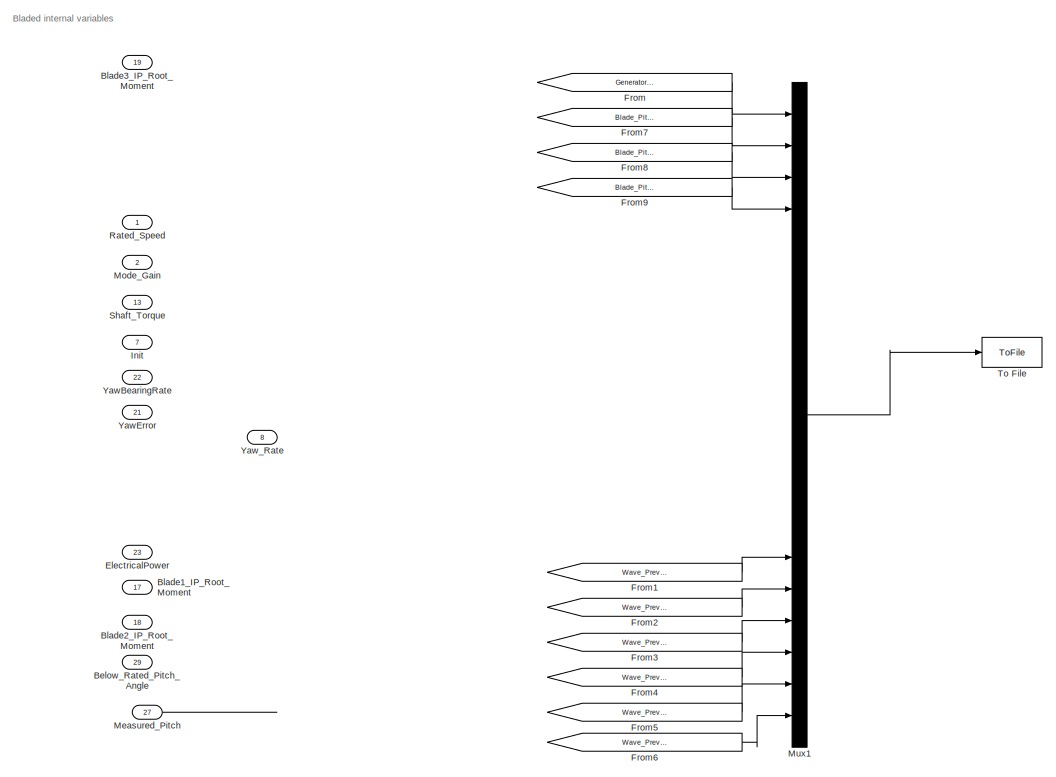
[diagram: root canvas - part 1/3, middle right region]
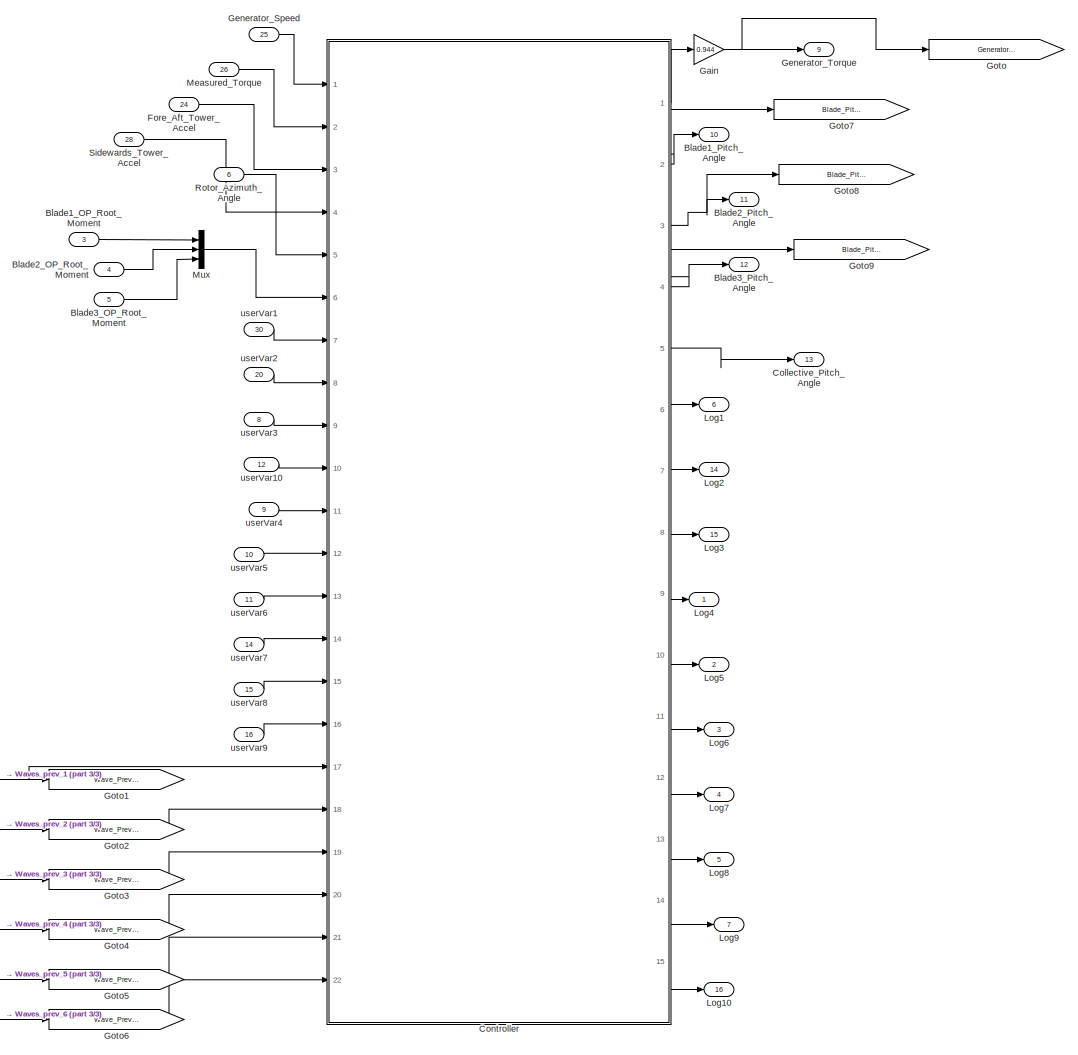
[diagram: root canvas - part 2/3, left side, full height]
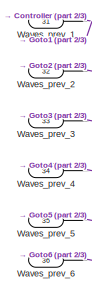
[diagram: root canvas - part 3/3, bottom left region]
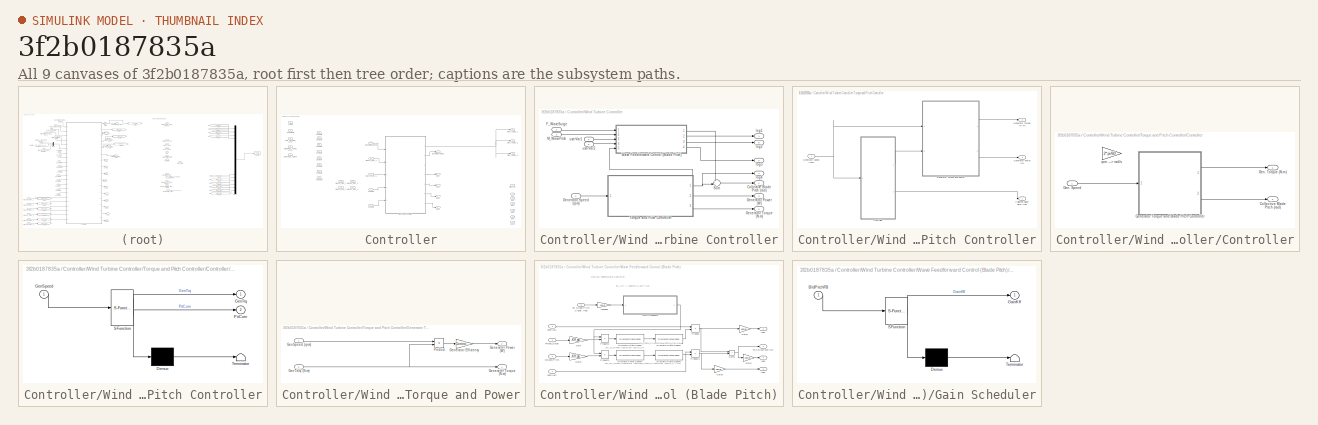
[diagram: thumbnail index - all 9 canvases of the model, root first then tree order]
MODEL slx_3f2b0187835a
KIND model
CONFIG AbsTol = auto
CONFIG EnableMultiTasking = off
CONFIG FixedStep = Control.TimeStep
CONFIG MaxStep = auto
CONFIG MinStep = auto
CONFIG RelTol = 1e-3
CONFIG SampleTimeConstraint = Unconstrained
CONFIG SolverName = FixedStepDiscrete
CONFIG StartTime = 0.0
CONFIG StopTime = inf
BLOCK [Inport] Below_Rated_Pitch_Angle
  Port = 29
  PortDimensions = 1
  SignalType = real
BLOCK [Inport] Blade1_IP_Root_Moment
  Port = 17
  PortDimensions = 1
  SignalType = real
  VarSizeSig = No
BLOCK [Inport] Blade1_OP_Root_Moment
  Port = 3
  PortDimensions = 1
  SignalType = real
  VarSizeSig = No
BLOCK [Outport] Blade1_Pitch_Angle
  Port = 10
  PortDimensions = 1
  SignalType = real
  VarSizeSig = No
  VectorParamsAs1DForOutWhenUnconnected = off
BLOCK [Inport] Blade2_IP_Root_Moment
  Port = 18
  PortDimensions = 1
  SignalType = real
  VarSizeSig = No
BLOCK [Inport] Blade2_OP_Root_Moment
  Port = 4
  PortDimensions = 1
  SignalType = real
  VarSizeSig = No
BLOCK [Outport] Blade2_Pitch_Angle
  Port = 11
  PortDimensions = 1
  SignalType = real
  VarSizeSig = No
  VectorParamsAs1DForOutWhenUnconnected = off
BLOCK [Inport] Blade3_IP_Root_Moment
  Port = 19
  PortDimensions = 1
  SignalType = real
  VarSizeSig = No
BLOCK [Inport] Blade3_OP_Root_Moment
  Port = 5
  PortDimensions = 1
  SignalType = real
  VarSizeSig = No
BLOCK [Outport] Blade3_Pitch_Angle
  Port = 12
  PortDimensions = 1
  SignalType = real
  VarSizeSig = No
  VectorParamsAs1DForOutWhenUnconnected = off
BLOCK [Outport] Collective_Pitch_Angle
  Port = 13
  PortDimensions = 1
  SignalType = real
  VarSizeSig = No
  VectorParamsAs1DForOutWhenUnconnected = off
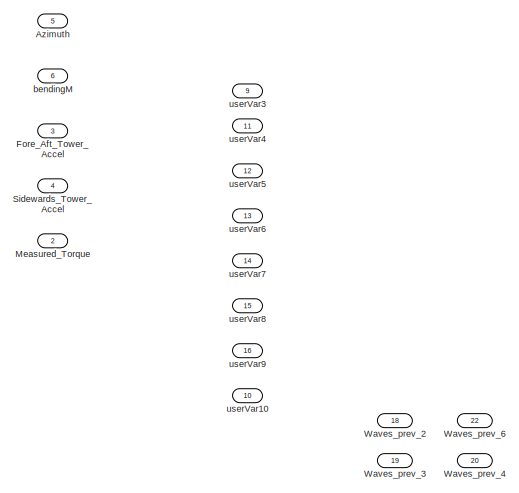
[diagram: Controller - part 1/2, middle left region]
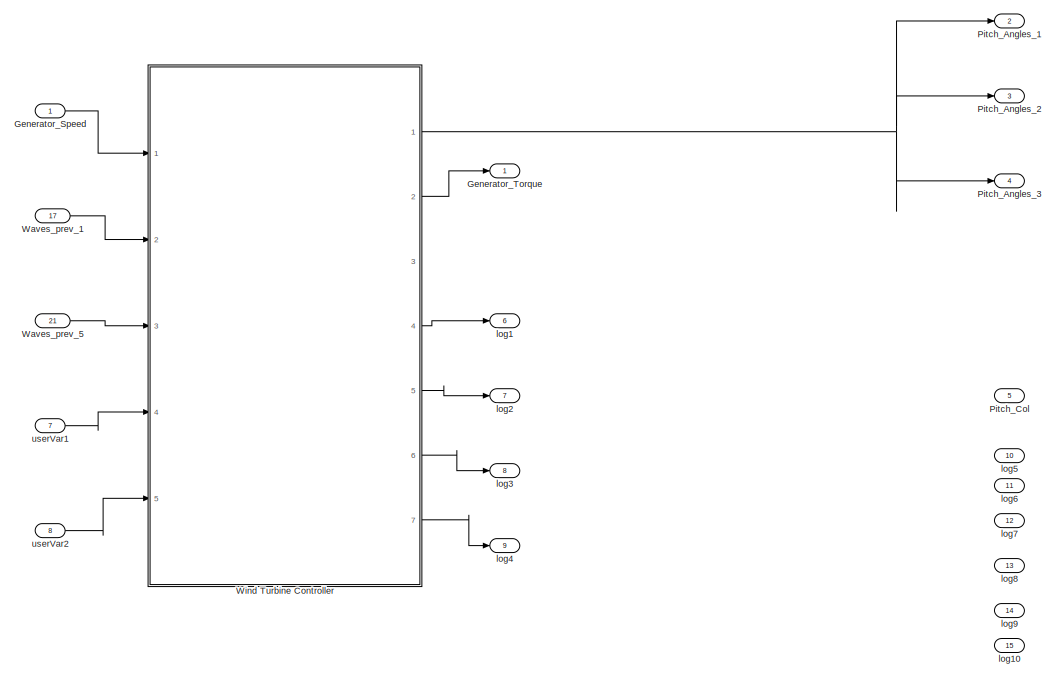
[diagram: Controller - part 2/2, right side, full height]
BLOCK [SubSystem] Controller
  Ports = [22, 15]
  RequestExecContextInheritance = off
BLOCK [Inport] Controller/Azimuth
  Port = 5
  PortDimensions = 1
  SignalType = real
BLOCK [Inport] Controller/Fore_Aft_Tower_Accel
  Port = 3
BLOCK [Inport] Controller/Generator_Speed
BLOCK [Outport] Controller/Generator_Torque
  VectorParamsAs1DForOutWhenUnconnected = off
BLOCK [Inport] Controller/Measured_Torque
  Port = 2
BLOCK [Outport] Controller/Pitch_Angles_1
  Port = 2
  PortDimensions = 1
  SignalType = real
  VectorParamsAs1DForOutWhenUnconnected = off
BLOCK [Outport] Controller/Pitch_Angles_2
  Port = 3
  PortDimensions = 1
  SignalType = real
  VectorParamsAs1DForOutWhenUnconnected = off
BLOCK [Outport] Controller/Pitch_Angles_3
  Port = 4
  PortDimensions = 1
  SignalType = real
  VectorParamsAs1DForOutWhenUnconnected = off
BLOCK [Outport] Controller/Pitch_Col
  Port = 5
  PortDimensions = 1
  SignalType = real
  VectorParamsAs1DForOutWhenUnconnected = off
BLOCK [Inport] Controller/Sidewards_Tower_Accel
  Port = 4
  PortDimensions = 1
  SignalType = real
BLOCK [Inport] Controller/Waves_prev_1
  Port = 17
  PortDimensions = 1
  SignalType = real
BLOCK [Inport] Controller/Waves_prev_2
  Port = 18
  PortDimensions = 1
  SignalType = real
BLOCK [Inport] Controller/Waves_prev_3
  Port = 19
  PortDimensions = 1
  SignalType = real
BLOCK [Inport] Controller/Waves_prev_4
  Port = 20
  PortDimensions = 1
  SignalType = real
BLOCK [Inport] Controller/Waves_prev_5
  Port = 21
  PortDimensions = 1
  SignalType = real
BLOCK [Inport] Controller/Waves_prev_6
  Port = 22
  PortDimensions = 1
  SignalType = real
BLOCK [SubSystem] Controller/Wind Turbine Controller
  Ports = [5, 7]
  RequestExecContextInheritance = off
BLOCK [Outport] Controller/Wind Turbine Controller/ Collective Blade Pitch (rad)
  NameLocation = right
BLOCK [Inport] Controller/Wind Turbine Controller/F_WaveSurge
  NameLocation = top
  Port = 2
BLOCK [Outport] Controller/Wind Turbine Controller/Generator Power (W)
  NameLocation = right
  Port = 3
BLOCK [Inport] Controller/Wind Turbine Controller/Generator Speed (rpm)
BLOCK [Outport] Controller/Wind Turbine Controller/Generator Torque (N.m)
  NameLocation = right
  Port = 2
BLOCK [Inport] Controller/Wind Turbine Controller/M_WavePitch
  Port = 3
BLOCK [Sum] Controller/Wind Turbine Controller/Sum
  Inputs = ++|
  Ports = [2, 1]
BLOCK [SubSystem] Controller/Wind Turbine Controller/Torque and Pitch Controller
  Ports = [1, 3]
  RequestExecContextInheritance = off
BLOCK [Outport] Controller/Wind Turbine Controller/Torque and Pitch Controller/ Collective Blade Pitch (rad)
BLOCK [SubSystem] Controller/Wind Turbine Controller/Torque and Pitch Controller/Controller
  Ports = [1, 2]
  RequestExecContextInheritance = off
BLOCK [Outport] Controller/Wind Turbine Controller/Torque and Pitch Controller/Controller/Collective Blade Pitch (rad)
  Port = 2
BLOCK [Inport] Controller/Wind Turbine Controller/Torque and Pitch Controller/Controller/Gen. Speed
BLOCK [Outport] Controller/Wind Turbine Controller/Torque and Pitch Controller/Controller/Gen. Torque (N.m)
BLOCK [SubSystem] Controller/Wind Turbine Controller/Torque and Pitch Controller/Controller/Generator Torque and Blade Pitch Controller
  ErrorFcn = Stateflow.Translate.translate
  PermitHierarchicalResolution = ExplicitOnly
  Ports = [1, 2]
  RequestExecContextInheritance = off
  SFBlockType = MATLAB Function
  TreatAsAtomicUnit = on
BLOCK [Demux] Controller/Wind Turbine Controller/Torque and Pitch Controller/Controller/Generator Torque and Blade Pitch Controller/ Demux 
  Outputs = 1
  Ports = [1, 1]
BLOCK [S-Function] Controller/Wind Turbine Controller/Torque and Pitch Controller/Controller/Generator Torque and Blade Pitch Controller/ SFunction 
  EnableBusSupport = on
  FunctionName = sf_sfun
  Parameters = Control
  PortCounts = [1 3]
  Ports = [1, 3]
  SFcnIsStateOwnerBlock = off
  SFunctionDeploymentMode = off
  Tag = Stateflow S-Function 16
BLOCK [Terminator] Controller/Wind Turbine Controller/Torque and Pitch Controller/Controller/Generator Torque and Blade Pitch Controller/ Terminator 
BLOCK [Inport] Controller/Wind Turbine Controller/Torque and Pitch Controller/Controller/Generator Torque and Blade Pitch Controller/GenSpeed
BLOCK [Outport] Controller/Wind Turbine Controller/Torque and Pitch Controller/Controller/Generator Torque and Blade Pitch Controller/GenTrq
BLOCK [Outport] Controller/Wind Turbine Controller/Torque and Pitch Controller/Controller/Generator Torque and Blade Pitch Controller/PitCom
  Port = 2
BLOCK [Gain] Controller/Wind Turbine Controller/Torque and Pitch Controller/Controller/rpm ---> rad//s
  Gain = 2*pi/60
BLOCK [Outport] Controller/Wind Turbine Controller/Torque and Pitch Controller/Generator Power (W)
  Port = 2
BLOCK [Inport] Controller/Wind Turbine Controller/Torque and Pitch Controller/Generator Speed (rpm)
BLOCK [Outport] Controller/Wind Turbine Controller/Torque and Pitch Controller/Generator Torque (N.m)
  Port = 3
BLOCK [SubSystem] Controller/Wind Turbine Controller/Torque and Pitch Controller/Generator Torque and Power
  Ports = [2, 2]
  RequestExecContextInheritance = off
BLOCK [Inport] Controller/Wind Turbine Controller/Torque and Pitch Controller/Generator Torque and Power/GenSpeed (rpm)
BLOCK [Inport] Controller/Wind Turbine Controller/Torque and Pitch Controller/Generator Torque and Power/GenTorq (N.m)
  Port = 2
BLOCK [Gain] Controller/Wind Turbine Controller/Torque and Pitch Controller/Generator Torque and Power/Generator Efficiency
  Gain = Control.Torque.GenEffec
BLOCK [Outport] Controller/Wind Turbine Controller/Torque and Pitch Controller/Generator Torque and Power/Generator Power (W)
  Port = 2
BLOCK [Outport] Controller/Wind Turbine Controller/Torque and Pitch Controller/Generator Torque and Power/Generator Torque (N.m)
BLOCK [Product] Controller/Wind Turbine Controller/Torque and Pitch Controller/Generator Torque and Power/Product
  Ports = [2, 1]
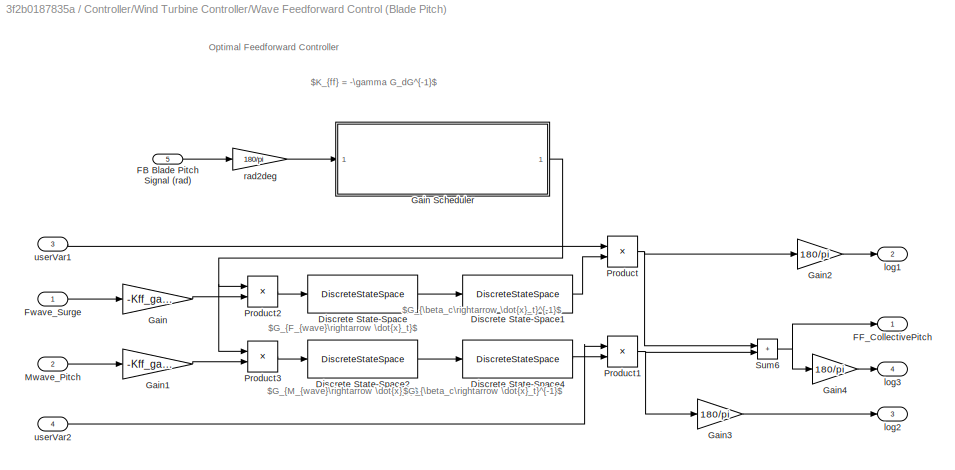
BLOCK [SubSystem] Controller/Wind Turbine Controller/Wave Feedforward Control (Blade Pitch)
  Ports = [5, 4]
  RequestExecContextInheritance = off
BLOCK [DiscreteStateSpace] Controller/Wind Turbine Controller/Wave Feedforward Control (Blade Pitch)/Discrete State-Space
  A = Gd_Fwave.A
  B = Gd_Fwave.B
  C = Gd_Fwave.C
  D = Gd_Fwave.D
  SampleTime = Control.TimeStep
BLOCK [DiscreteStateSpace] Controller/Wind Turbine Controller/Wave Feedforward Control (Blade Pitch)/Discrete State-Space1
  A = InvGp.A
  B = InvGp.B
  C = InvGp.C
  D = InvGp.D
  SampleTime = Control.TimeStep
BLOCK [DiscreteStateSpace] Controller/Wind Turbine Controller/Wave Feedforward Control (Blade Pitch)/Discrete State-Space2
  A = Gd_Mwave.A
  B = Gd_Mwave.B
  C = Gd_Mwave.C
  D = Gd_Mwave.D
  SampleTime = Control.TimeStep
BLOCK [DiscreteStateSpace] Controller/Wind Turbine Controller/Wave Feedforward Control (Blade Pitch)/Discrete State-Space4
  A = InvGp.A
  B = InvGp.B
  C = InvGp.C
  D = InvGp.D
  SampleTime = Control.TimeStep
BLOCK [Inport] Controller/Wind Turbine Controller/Wave Feedforward Control (Blade Pitch)/FB Blade Pitch Signal (rad)
  NameLocation = left
  Port = 5
BLOCK [Outport] Controller/Wind Turbine Controller/Wave Feedforward Control (Blade Pitch)/FF_CollectivePitch
BLOCK [Inport] Controller/Wind Turbine Controller/Wave Feedforward Control (Blade Pitch)/Fwave_Surge
BLOCK [Gain] Controller/Wind Turbine Controller/Wave Feedforward Control (Blade Pitch)/Gain
  Gain = -Kff_gain
BLOCK [SubSystem] Controller/Wind Turbine Controller/Wave Feedforward Control (Blade Pitch)/Gain Scheduler
  ErrorFcn = Stateflow.Translate.translate
  PermitHierarchicalResolution = ExplicitOnly
  Ports = [1, 1]
  RequestExecContextInheritance = off
  SFBlockType = MATLAB Function
  TreatAsAtomicUnit = on
BLOCK [Demux] Controller/Wind Turbine Controller/Wave Feedforward Control (Blade Pitch)/Gain Scheduler/ Demux 
  Outputs = 1
  Ports = [1, 1]
BLOCK [S-Function] Controller/Wind Turbine Controller/Wave Feedforward Control (Blade Pitch)/Gain Scheduler/ SFunction 
  EnableBusSupport = on
  FunctionName = sf_sfun
  PortCounts = [1 2]
  Ports = [1, 2]
  SFcnIsStateOwnerBlock = off
  SFunctionDeploymentMode = off
  Tag = Stateflow S-Function 2
BLOCK [Terminator] Controller/Wind Turbine Controller/Wave Feedforward Control (Blade Pitch)/Gain Scheduler/ Terminator 
BLOCK [Inport] Controller/Wind Turbine Controller/Wave Feedforward Control (Blade Pitch)/Gain Scheduler/BldPitchFB
BLOCK [Outport] Controller/Wind Turbine Controller/Wave Feedforward Control (Blade Pitch)/Gain Scheduler/GainKff
BLOCK [Gain] Controller/Wind Turbine Controller/Wave Feedforward Control (Blade Pitch)/Gain1
  Gain = -Kff_gain
BLOCK [Gain] Controller/Wind Turbine Controller/Wave Feedforward Control (Blade Pitch)/Gain2
  Gain = 180/pi
BLOCK [Gain] Controller/Wind Turbine Controller/Wave Feedforward Control (Blade Pitch)/Gain3
  Gain = 180/pi
BLOCK [Gain] Controller/Wind Turbine Controller/Wave Feedforward Control (Blade Pitch)/Gain4
  Gain = 180/pi
BLOCK [Inport] Controller/Wind Turbine Controller/Wave Feedforward Control (Blade Pitch)/Mwave_Pitch
  Port = 2
BLOCK [Product] Controller/Wind Turbine Controller/Wave Feedforward Control (Blade Pitch)/Product
  Ports = [2, 1]
BLOCK [Product] Controller/Wind Turbine Controller/Wave Feedforward Control (Blade Pitch)/Product1
  Ports = [2, 1]
BLOCK [Product] Controller/Wind Turbine Controller/Wave Feedforward Control (Blade Pitch)/Product2
  Ports = [2, 1]
BLOCK [Product] Controller/Wind Turbine Controller/Wave Feedforward Control (Blade Pitch)/Product3
  Ports = [2, 1]
BLOCK [Sum] Controller/Wind Turbine Controller/Wave Feedforward Control (Blade Pitch)/Sum6
  IconShape = rectangular
  Ports = [2, 1]
BLOCK [Outport] Controller/Wind Turbine Controller/Wave Feedforward Control (Blade Pitch)/log1
  Port = 2
  PortDimensions = 1
  SignalType = real
  VectorParamsAs1DForOutWhenUnconnected = off
BLOCK [Outport] Controller/Wind Turbine Controller/Wave Feedforward Control (Blade Pitch)/log2
  Port = 3
  PortDimensions = 1
  SignalType = real
  VectorParamsAs1DForOutWhenUnconnected = off
BLOCK [Outport] Controller/Wind Turbine Controller/Wave Feedforward Control (Blade Pitch)/log3
  Port = 4
  PortDimensions = 1
  SignalType = real
  VectorParamsAs1DForOutWhenUnconnected = off
BLOCK [Gain] Controller/Wind Turbine Controller/Wave Feedforward Control (Blade Pitch)/rad2deg
  Gain = 180/pi
BLOCK [Inport] Controller/Wind Turbine Controller/Wave Feedforward Control (Blade Pitch)/userVar1
  Port = 3
  PortDimensions = 1
  SignalType = real
BLOCK [Inport] Controller/Wind Turbine Controller/Wave Feedforward Control (Blade Pitch)/userVar2
  Port = 4
  PortDimensions = 1
  SignalType = real
BLOCK [Outport] Controller/Wind Turbine Controller/log1
  NameLocation = right
  Port = 4
  PortDimensions = 1
  SignalType = real
  VectorParamsAs1DForOutWhenUnconnected = off
BLOCK [Outport] Controller/Wind Turbine Controller/log2
  NameLocation = right
  Port = 5
  PortDimensions = 1
  SignalType = real
  VectorParamsAs1DForOutWhenUnconnected = off
BLOCK [Outport] Controller/Wind Turbine Controller/log3
  NameLocation = right
  Port = 6
  PortDimensions = 1
  SignalType = real
  VectorParamsAs1DForOutWhenUnconnected = off
BLOCK [Outport] Controller/Wind Turbine Controller/log4
  NameLocation = right
  Port = 7
  PortDimensions = 1
  SignalType = real
  VectorParamsAs1DForOutWhenUnconnected = off
BLOCK [Inport] Controller/Wind Turbine Controller/userVar1
  NameLocation = left
  Port = 4
  PortDimensions = 1
  SignalType = real
BLOCK [Inport] Controller/Wind Turbine Controller/userVar2
  NameLocation = left
  Port = 5
  PortDimensions = 1
  SignalType = real
BLOCK [Inport] Controller/bendingM
  Port = 6
  SignalType = real
BLOCK [Outport] Controller/log1
  Port = 6
  PortDimensions = 1
  SignalType = real
  VectorParamsAs1DForOutWhenUnconnected = off
BLOCK [Outport] Controller/log10
  Port = 15
  PortDimensions = 1
  SignalType = real
  VectorParamsAs1DForOutWhenUnconnected = off
BLOCK [Outport] Controller/log2
  Port = 7
  PortDimensions = 1
  SignalType = real
  VectorParamsAs1DForOutWhenUnconnected = off
BLOCK [Outport] Controller/log3
  Port = 8
  PortDimensions = 1
  SignalType = real
  VectorParamsAs1DForOutWhenUnconnected = off
BLOCK [Outport] Controller/log4
  Port = 9
  PortDimensions = 1
  SignalType = real
  VectorParamsAs1DForOutWhenUnconnected = off
BLOCK [Outport] Controller/log5
  Port = 10
  PortDimensions = 1
  SignalType = real
  VectorParamsAs1DForOutWhenUnconnected = off
BLOCK [Outport] Controller/log6
  Port = 11
  PortDimensions = 1
  SignalType = real
  VectorParamsAs1DForOutWhenUnconnected = off
BLOCK [Outport] Controller/log7
  Port = 12
  PortDimensions = 1
  SignalType = real
  VectorParamsAs1DForOutWhenUnconnected = off
BLOCK [Outport] Controller/log8
  Port = 13
  PortDimensions = 1
  SignalType = real
  VectorParamsAs1DForOutWhenUnconnected = off
BLOCK [Outport] Controller/log9
  Port = 14
  PortDimensions = 1
  SignalType = real
  VectorParamsAs1DForOutWhenUnconnected = off
BLOCK [Inport] Controller/userVar1
  Port = 7
  PortDimensions = 1
  SignalType = real
BLOCK [Inport] Controller/userVar10
  Port = 10
  PortDimensions = 1
  SignalType = real
BLOCK [Inport] Controller/userVar2
  Port = 8
  PortDimensions = 1
  SignalType = real
BLOCK [Inport] Controller/userVar3
  Port = 9
  PortDimensions = 1
  SignalType = real
BLOCK [Inport] Controller/userVar4
  Port = 11
  PortDimensions = 1
  SignalType = real
BLOCK [Inport] Controller/userVar5
  Port = 12
  PortDimensions = 1
  SignalType = real
BLOCK [Inport] Controller/userVar6
  Port = 13
  PortDimensions = 1
  SignalType = real
BLOCK [Inport] Controller/userVar7
  Port = 14
  PortDimensions = 1
  SignalType = real
BLOCK [Inport] Controller/userVar8
  Port = 15
  PortDimensions = 1
  SignalType = real
BLOCK [Inport] Controller/userVar9
  Port = 16
  PortDimensions = 1
  SignalType = real
BLOCK [Inport] ElectricalPower
  Port = 23
  PortDimensions = 1
  SignalType = real
BLOCK [Inport] Fore_Aft_Tower_Accel
  Port = 24
  PortDimensions = 1
  SignalType = real
BLOCK [From] From
  GotoTag = Generator_Torque
BLOCK [From] From1
  GotoTag = Wave_Prev_1
BLOCK [From] From2
  GotoTag = Wave_Prev_2
BLOCK [From] From3
  GotoTag = Wave_Prev_3
BLOCK [From] From4
  GotoTag = Wave_Prev_4
BLOCK [From] From5
  GotoTag = Wave_Prev_5
BLOCK [From] From6
  GotoTag = Wave_Prev_6
BLOCK [From] From7
  GotoTag = Blade_Pitch_1
BLOCK [From] From8
  GotoTag = Blade_Pitch_2
BLOCK [From] From9
  GotoTag = Blade_Pitch_3
BLOCK [Gain] Gain
  Gain = 0.944
BLOCK [Inport] Generator_Speed
  Port = 25
  PortDimensions = 1
  SignalType = real
BLOCK [Outport] Generator_Torque
  Port = 9
  PortDimensions = 1
  SignalType = real
  VectorParamsAs1DForOutWhenUnconnected = off
BLOCK [Goto] Goto
  GotoTag = Generator_Torque
BLOCK [Goto] Goto1
  GotoTag = Wave_Prev_1
BLOCK [Goto] Goto2
  GotoTag = Wave_Prev_2
BLOCK [Goto] Goto3
  GotoTag = Wave_Prev_3
BLOCK [Goto] Goto4
  GotoTag = Wave_Prev_4
BLOCK [Goto] Goto5
  GotoTag = Wave_Prev_5
BLOCK [Goto] Goto6
  GotoTag = Wave_Prev_6
BLOCK [Goto] Goto7
  GotoTag = Blade_Pitch_1
BLOCK [Goto] Goto8
  GotoTag = Blade_Pitch_2
BLOCK [Goto] Goto9
  GotoTag = Blade_Pitch_3
BLOCK [Inport] Init
  Port = 7
  PortDimensions = 1
  SignalType = real
BLOCK [Outport] Log1
  Port = 6
  PortDimensions = 1
  SignalType = real
  VarSizeSig = No
  VectorParamsAs1DForOutWhenUnconnected = off
BLOCK [Outport] Log10
  Port = 16
  PortDimensions = 1
  SignalType = real
  VarSizeSig = No
  VectorParamsAs1DForOutWhenUnconnected = off
BLOCK [Outport] Log2
  Port = 14
  PortDimensions = 1
  SignalType = real
  VarSizeSig = No
  VectorParamsAs1DForOutWhenUnconnected = off
BLOCK [Outport] Log3
  Port = 15
  PortDimensions = 1
  SignalType = real
  VarSizeSig = No
  VectorParamsAs1DForOutWhenUnconnected = off
BLOCK [Outport] Log4
  PortDimensions = 1
  SignalType = real
  VarSizeSig = No
  VectorParamsAs1DForOutWhenUnconnected = off
BLOCK [Outport] Log5
  Port = 2
  PortDimensions = 1
  SignalType = real
  VarSizeSig = No
  VectorParamsAs1DForOutWhenUnconnected = off
BLOCK [Outport] Log6
  Port = 3
  PortDimensions = 1
  SignalType = real
  VarSizeSig = No
  VectorParamsAs1DForOutWhenUnconnected = off
BLOCK [Outport] Log7
  Port = 4
  PortDimensions = 1
  SignalType = real
  VarSizeSig = No
  VectorParamsAs1DForOutWhenUnconnected = off
BLOCK [Outport] Log8
  Port = 5
  PortDimensions = 1
  SignalType = real
  VarSizeSig = No
  VectorParamsAs1DForOutWhenUnconnected = off
BLOCK [Outport] Log9
  Port = 7
  PortDimensions = 1
  SignalType = real
  VarSizeSig = No
  VectorParamsAs1DForOutWhenUnconnected = off
BLOCK [Inport] Measured_Pitch
  Port = 27
  PortDimensions = 1
  SignalType = real
BLOCK [Inport] Measured_Torque
  Port = 26
  PortDimensions = 1
  SignalType = real
BLOCK [Inport] Mode_Gain
  Port = 2
  PortDimensions = 1
  SignalType = real
BLOCK [Mux] Mux
  DisplayOption = bar
  Inputs = 3
  Ports = [3, 1]
BLOCK [Mux] Mux1
  DisplayOption = bar
  Inputs = 20
  Ports = [20, 1]
BLOCK [Inport] Rated_Speed
  PortDimensions = 1
  SignalType = real
BLOCK [Inport] Rotor_Azimuth_Angle
  Port = 6
  PortDimensions = 1
  SignalType = real
  VarSizeSig = No
BLOCK [Inport] Shaft_Torque
  Port = 13
  PortDimensions = 1
  SignalType = real
BLOCK [Inport] Sidewards_Tower_Accel
  Port = 28
  PortDimensions = 1
  SignalType = real
BLOCK [ToFile] To File
  Filename = Data2.mat
  Ports = [1]
BLOCK [Inport] Waves_prev_1
  Port = 31
  PortDimensions = 1
  SignalType = real
BLOCK [Inport] Waves_prev_2
  Port = 32
  PortDimensions = 1
  SignalType = real
BLOCK [Inport] Waves_prev_3
  Port = 33
  PortDimensions = 1
  SignalType = real
BLOCK [Inport] Waves_prev_4
  Port = 34
  PortDimensions = 1
  SignalType = real
BLOCK [Inport] Waves_prev_5
  Port = 35
  PortDimensions = 1
  SignalType = real
BLOCK [Inport] Waves_prev_6
  Port = 36
  PortDimensions = 1
  SignalType = real
BLOCK [Inport] YawBearingRate
  Port = 22
  PortDimensions = 1
  SignalType = real
BLOCK [Inport] YawError
  Port = 21
  PortDimensions = 1
  SignalType = real
BLOCK [Outport] Yaw_Rate
  Port = 8
  PortDimensions = 1
  SignalType = real
  VarSizeSig = No
  VectorParamsAs1DForOutWhenUnconnected = off
BLOCK [Inport] userVar1
  Port = 30
  PortDimensions = 1
  SignalType = real
BLOCK [Inport] userVar10
  Port = 12
  PortDimensions = 1
  SignalType = real
BLOCK [Inport] userVar2
  Port = 20
  PortDimensions = 1
  SignalType = real
BLOCK [Inport] userVar3
  Port = 8
  PortDimensions = 1
  SignalType = real
BLOCK [Inport] userVar4
  Port = 9
  PortDimensions = 1
  SignalType = real
BLOCK [Inport] userVar5
  Port = 10
  PortDimensions = 1
  SignalType = real
BLOCK [Inport] userVar6
  Port = 11
  PortDimensions = 1
  SignalType = real
BLOCK [Inport] userVar7
  Port = 14
  PortDimensions = 1
  SignalType = real
BLOCK [Inport] userVar8
  Port = 15
  PortDimensions = 1
  SignalType = real
BLOCK [Inport] userVar9
  Port = 16
  PortDimensions = 1
  SignalType = real
ANNOTATION (root): Bladed internal variables
ANNOTATION Controller/Wind Turbine Controller/Wave Feedforward Control (Blade Pitch): Optimal Feedforward Controller
ANNOTATION Controller/Wind Turbine Controller/Wave Feedforward Control (Blade Pitch): $G_{F_{wave}\rightarrow \dot{x}_t}$
ANNOTATION Controller/Wind Turbine Controller/Wave Feedforward Control (Blade Pitch): $G_{M_{wave}\rightarrow \dot{x}_t}$
ANNOTATION Controller/Wind Turbine Controller/Wave Feedforward Control (Blade Pitch): $G_{\beta_c\rightarrow \dot{x}_t}^{-1}$
ANNOTATION Controller/Wind Turbine Controller/Wave Feedforward Control (Blade Pitch): $K_{ff} = -\gamma G_dG^{-1}$
LINE Blade1_OP_Root_Moment:1 -> Mux:1
LINE Blade2_OP_Root_Moment:1 -> Mux:2
LINE Blade3_OP_Root_Moment:1 -> Mux:3
LINE Controller/Generator_Speed:1 -> Controller/Wind Turbine Controller:1
LINE Controller/Waves_prev_1:1 -> Controller/Wind Turbine Controller:2
LINE Controller/Waves_prev_5:1 -> Controller/Wind Turbine Controller:3
LINE Controller/Wind Turbine Controller/F_WaveSurge:1 -> Controller/Wind Turbine Controller/Wave Feedforward Control (Blade Pitch):1
LINE Controller/Wind Turbine Controller/Generator Speed (rpm):1 -> Controller/Wind Turbine Controller/Torque and Pitch Controller:1
LINE Controller/Wind Turbine Controller/M_WavePitch:1 -> Controller/Wind Turbine Controller/Wave Feedforward Control (Blade Pitch):2
LINE Controller/Wind Turbine Controller/Sum:1 -> Controller/Wind Turbine Controller/ Collective Blade Pitch (rad):1
LINE Controller/Wind Turbine Controller/Torque and Pitch Controller/Controller/Gen. Speed:1 -> Controller/Wind Turbine Controller/Torque and Pitch Controller/Controller/Generator Torque and Blade Pitch Controller:1
LINE Controller/Wind Turbine Controller/Torque and Pitch Controller/Controller/Generator Torque and Blade Pitch Controller:1 -> Controller/Wind Turbine Controller/Torque and Pitch Controller/Controller/Gen. Torque (N.m):1
LINE Controller/Wind Turbine Controller/Torque and Pitch Controller/Controller/Generator Torque and Blade Pitch Controller:2 -> Controller/Wind Turbine Controller/Torque and Pitch Controller/Controller/Collective Blade Pitch (rad):1
LINE Controller/Wind Turbine Controller/Torque and Pitch Controller/Controller:1 -> Controller/Wind Turbine Controller/Torque and Pitch Controller/Generator Torque and Power:2
LINE Controller/Wind Turbine Controller/Torque and Pitch Controller/Controller:2 -> Controller/Wind Turbine Controller/Torque and Pitch Controller/ Collective Blade Pitch (rad):1
NET Controller/Wind Turbine Controller/Torque and Pitch Controller/Generator Speed (rpm):1 -> Controller/Wind Turbine Controller/Torque and Pitch Controller/Controller:1, Controller/Wind Turbine Controller/Torque and Pitch Controller/Generator Torque and Power:1
LINE Controller/Wind Turbine Controller/Torque and Pitch Controller/Generator Torque and Power/GenSpeed (rpm):1 -> Controller/Wind Turbine Controller/Torque and Pitch Controller/Generator Torque and Power/Product:1
NET Controller/Wind Turbine Controller/Torque and Pitch Controller/Generator Torque and Power/GenTorq (N.m):1 -> Controller/Wind Turbine Controller/Torque and Pitch Controller/Generator Torque and Power/Generator Torque (N.m):1, Controller/Wind Turbine Controller/Torque and Pitch Controller/Generator Torque and Power/Product:2
LINE Controller/Wind Turbine Controller/Torque and Pitch Controller/Generator Torque and Power/Generator Efficiency:1 -> Controller/Wind Turbine Controller/Torque and Pitch Controller/Generator Torque and Power/Generator Power (W):1
LINE Controller/Wind Turbine Controller/Torque and Pitch Controller/Generator Torque and Power/Product:1 -> Controller/Wind Turbine Controller/Torque and Pitch Controller/Generator Torque and Power/Generator Efficiency:1
LINE Controller/Wind Turbine Controller/Torque and Pitch Controller/Generator Torque and Power:1 -> Controller/Wind Turbine Controller/Torque and Pitch Controller/Generator Torque (N.m):1
LINE Controller/Wind Turbine Controller/Torque and Pitch Controller/Generator Torque and Power:2 -> Controller/Wind Turbine Controller/Torque and Pitch Controller/Generator Power (W):1
NET Controller/Wind Turbine Controller/Torque and Pitch Controller:1 -> Controller/Wind Turbine Controller/Sum:2, Controller/Wind Turbine Controller/Wave Feedforward Control (Blade Pitch):5, Controller/Wind Turbine Controller/log4:1
LINE Controller/Wind Turbine Controller/Torque and Pitch Controller:2 -> Controller/Wind Turbine Controller/Generator Power (W):1
LINE Controller/Wind Turbine Controller/Torque and Pitch Controller:3 -> Controller/Wind Turbine Controller/Generator Torque (N.m):1
LINE Controller/Wind Turbine Controller/Wave Feedforward Control (Blade Pitch)/Discrete State-Space1:1 -> Controller/Wind Turbine Controller/Wave Feedforward Control (Blade Pitch)/Product:2
LINE Controller/Wind Turbine Controller/Wave Feedforward Control (Blade Pitch)/Discrete State-Space2:1 -> Controller/Wind Turbine Controller/Wave Feedforward Control (Blade Pitch)/Discrete State-Space4:1
LINE Controller/Wind Turbine Controller/Wave Feedforward Control (Blade Pitch)/Discrete State-Space4:1 -> Controller/Wind Turbine Controller/Wave Feedforward Control (Blade Pitch)/Product1:2
LINE Controller/Wind Turbine Controller/Wave Feedforward Control (Blade Pitch)/Discrete State-Space:1 -> Controller/Wind Turbine Controller/Wave Feedforward Control (Blade Pitch)/Discrete State-Space1:1
LINE Controller/Wind Turbine Controller/Wave Feedforward Control (Blade Pitch)/FB Blade Pitch Signal (rad):1 -> Controller/Wind Turbine Controller/Wave Feedforward Control (Blade Pitch)/rad2deg:1
LINE Controller/Wind Turbine Controller/Wave Feedforward Control (Blade Pitch)/Fwave_Surge:1 -> Controller/Wind Turbine Controller/Wave Feedforward Control (Blade Pitch)/Gain:1
NET Controller/Wind Turbine Controller/Wave Feedforward Control (Blade Pitch)/Gain Scheduler:1 -> Controller/Wind Turbine Controller/Wave Feedforward Control (Blade Pitch)/Product2:1, Controller/Wind Turbine Controller/Wave Feedforward Control (Blade Pitch)/Product3:1
LINE Controller/Wind Turbine Controller/Wave Feedforward Control (Blade Pitch)/Gain1:1 -> Controller/Wind Turbine Controller/Wave Feedforward Control (Blade Pitch)/Product3:2
LINE Controller/Wind Turbine Controller/Wave Feedforward Control (Blade Pitch)/Gain2:1 -> Controller/Wind Turbine Controller/Wave Feedforward Control (Blade Pitch)/log1:1
LINE Controller/Wind Turbine Controller/Wave Feedforward Control (Blade Pitch)/Gain3:1 -> Controller/Wind Turbine Controller/Wave Feedforward Control (Blade Pitch)/log2:1
LINE Controller/Wind Turbine Controller/Wave Feedforward Control (Blade Pitch)/Gain4:1 -> Controller/Wind Turbine Controller/Wave Feedforward Control (Blade Pitch)/log3:1
LINE Controller/Wind Turbine Controller/Wave Feedforward Control (Blade Pitch)/Gain:1 -> Controller/Wind Turbine Controller/Wave Feedforward Control (Blade Pitch)/Product2:2
LINE Controller/Wind Turbine Controller/Wave Feedforward Control (Blade Pitch)/Mwave_Pitch:1 -> Controller/Wind Turbine Controller/Wave Feedforward Control (Blade Pitch)/Gain1:1
NET Controller/Wind Turbine Controller/Wave Feedforward Control (Blade Pitch)/Product1:1 -> Controller/Wind Turbine Controller/Wave Feedforward Control (Blade Pitch)/Gain3:1, Controller/Wind Turbine Controller/Wave Feedforward Control (Blade Pitch)/Sum6:2
LINE Controller/Wind Turbine Controller/Wave Feedforward Control (Blade Pitch)/Product2:1 -> Controller/Wind Turbine Controller/Wave Feedforward Control (Blade Pitch)/Discrete State-Space:1
LINE Controller/Wind Turbine Controller/Wave Feedforward Control (Blade Pitch)/Product3:1 -> Controller/Wind Turbine Controller/Wave Feedforward Control (Blade Pitch)/Discrete State-Space2:1
NET Controller/Wind Turbine Controller/Wave Feedforward Control (Blade Pitch)/Product:1 -> Controller/Wind Turbine Controller/Wave Feedforward Control (Blade Pitch)/Gain2:1, Controller/Wind Turbine Controller/Wave Feedforward Control (Blade Pitch)/Sum6:1
NET Controller/Wind Turbine Controller/Wave Feedforward Control (Blade Pitch)/Sum6:1 -> Controller/Wind Turbine Controller/Wave Feedforward Control (Blade Pitch)/FF_CollectivePitch:1, Controller/Wind Turbine Controller/Wave Feedforward Control (Blade Pitch)/Gain4:1
LINE Controller/Wind Turbine Controller/Wave Feedforward Control (Blade Pitch)/rad2deg:1 -> Controller/Wind Turbine Controller/Wave Feedforward Control (Blade Pitch)/Gain Scheduler:1
LINE Controller/Wind Turbine Controller/Wave Feedforward Control (Blade Pitch)/userVar1:1 -> Controller/Wind Turbine Controller/Wave Feedforward Control (Blade Pitch)/Product:1
LINE Controller/Wind Turbine Controller/Wave Feedforward Control (Blade Pitch)/userVar2:1 -> Controller/Wind Turbine Controller/Wave Feedforward Control (Blade Pitch)/Product1:1
LINE Controller/Wind Turbine Controller/Wave Feedforward Control (Blade Pitch):1 -> Controller/Wind Turbine Controller/Sum:1
LINE Controller/Wind Turbine Controller/Wave Feedforward Control (Blade Pitch):2 -> Controller/Wind Turbine Controller/log1:1
LINE Controller/Wind Turbine Controller/Wave Feedforward Control (Blade Pitch):3 -> Controller/Wind Turbine Controller/log2:1
LINE Controller/Wind Turbine Controller/Wave Feedforward Control (Blade Pitch):4 -> Controller/Wind Turbine Controller/log3:1
LINE Controller/Wind Turbine Controller/userVar1:1 -> Controller/Wind Turbine Controller/Wave Feedforward Control (Blade Pitch):3
LINE Controller/Wind Turbine Controller/userVar2:1 -> Controller/Wind Turbine Controller/Wave Feedforward Control (Blade Pitch):4
NET Controller/Wind Turbine Controller:1 -> Controller/Pitch_Angles_1:1, Controller/Pitch_Angles_2:1, Controller/Pitch_Angles_3:1
LINE Controller/Wind Turbine Controller:2 -> Controller/Generator_Torque:1
LINE Controller/Wind Turbine Controller:4 -> Controller/log1:1
LINE Controller/Wind Turbine Controller:5 -> Controller/log2:1
LINE Controller/Wind Turbine Controller:6 -> Controller/log3:1
LINE Controller/Wind Turbine Controller:7 -> Controller/log4:1
LINE Controller/userVar1:1 -> Controller/Wind Turbine Controller:4
LINE Controller/userVar2:1 -> Controller/Wind Turbine Controller:5
LINE Controller:1 -> Gain:1
LINE Controller:10 -> Log5:1
LINE Controller:11 -> Log6:1
LINE Controller:12 -> Log7:1
LINE Controller:13 -> Log8:1
LINE Controller:14 -> Log9:1
LINE Controller:15 -> Log10:1
NET Controller:2 -> Blade1_Pitch_Angle:1, Goto7:1
NET Controller:3 -> Blade2_Pitch_Angle:1, Goto8:1
NET Controller:4 -> Blade3_Pitch_Angle:1, Goto9:1
LINE Controller:5 -> Collective_Pitch_Angle:1
LINE Controller:6 -> Log1:1
LINE Controller:7 -> Log2:1
LINE Controller:8 -> Log3:1
LINE Controller:9 -> Log4:1
LINE Fore_Aft_Tower_Accel:1 -> Controller:3
LINE From1:1 -> Mux1:15
LINE From2:1 -> Mux1:16
LINE From3:1 -> Mux1:17
LINE From4:1 -> Mux1:18
LINE From5:1 -> Mux1:19
LINE From6:1 -> Mux1:20
LINE From7:1 -> Mux1:2
LINE From8:1 -> Mux1:3
LINE From9:1 -> Mux1:4
LINE From:1 -> Mux1:1
NET Gain:1 -> Generator_Torque:1, Goto:1
LINE Generator_Speed:1 -> Controller:1
LINE Measured_Torque:1 -> Controller:2
LINE Mux1:1 -> To File:1
LINE Mux:1 -> Controller:6
LINE Rotor_Azimuth_Angle:1 -> Controller:5
LINE Sidewards_Tower_Accel:1 -> Controller:4
NET Waves_prev_1:1 -> Controller:17, Goto1:1
NET Waves_prev_2:1 -> Controller:18, Goto2:1
NET Waves_prev_3:1 -> Controller:19, Goto3:1
NET Waves_prev_4:1 -> Controller:20, Goto4:1
NET Waves_prev_5:1 -> Controller:21, Goto5:1
NET Waves_prev_6:1 -> Controller:22, Goto6:1
LINE userVar10:1 -> Controller:10
LINE userVar1:1 -> Controller:7
LINE userVar2:1 -> Controller:8
LINE userVar3:1 -> Controller:9
LINE userVar4:1 -> Controller:11
LINE userVar5:1 -> Controller:12
LINE userVar6:1 -> Controller:13
LINE userVar7:1 -> Controller:14
LINE userVar8:1 -> Controller:15
LINE userVar9:1 -> Controller:16
note: NET lines group one-source signal fan-out (src -> all destinations, sorted); 1:1 wires keep LINE
CHART Controller/Wind Turbine Controller/Wave Feedforward Control (Blade Pitch)/Gain Scheduler states=1 transitions=1
  STATE_LABEL 'eML_blk_kernel()'
  STATE_LABEL 'SCRIPT:\nfunction GainKff = GainScheduler(BldPitchFB)\n\n\n% Specifying the operating point based on gain scheduling with respect to\n% the feedback blade pitch signal\n\np1 =   1.378e-06;\np2 =   -0.000122;\np3 =   0.004176;\np4 =    -0.06736;\np5 =      0.4593;\np6 =      0.1538;\n\nGainKff  = p1*BldPitchFB^5 + p2*BldPitchFB^4 + p3*BldPitchFB^3 + p4*BldPitchFB^2 + p5*BldPitchFB + p6;'
CHART Controller/Wind Turbine Controller/Torque and Pitch Controller/Controller/Generator Torque and Blade Pitch Controller states=1 transitions=1
  STATE_LABEL 'eML_blk_kernel()'
  STATE_LABEL 'SCRIPT:\nfunction [GenTrq, PitCom] = Controller(GenSpeed, Control)\n\n%% Definition of the variables used in the script\n% LPF_CornerFreq: Corner frequency (-3dB point) in the recursive, single-pole, low-pass filter, rad/s. -- chosen to be 1/4 the blade edgewise natural frequency ( 1/4 of approx. 1Hz = 0.25Hz = 1.570796rad/s)\n% TimeStep      : Simulation time step (s)\n% PC_DT         : Communication i...<+3608ch>'
CHART  states=0 transitions=0
CHART  states=0 transitions=0
